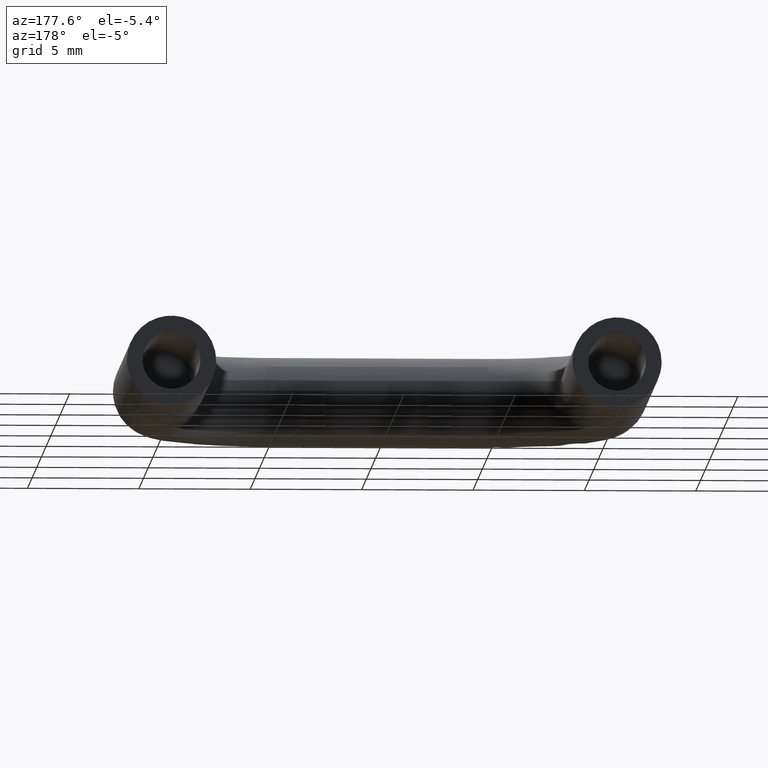
[diagram: clean part render]
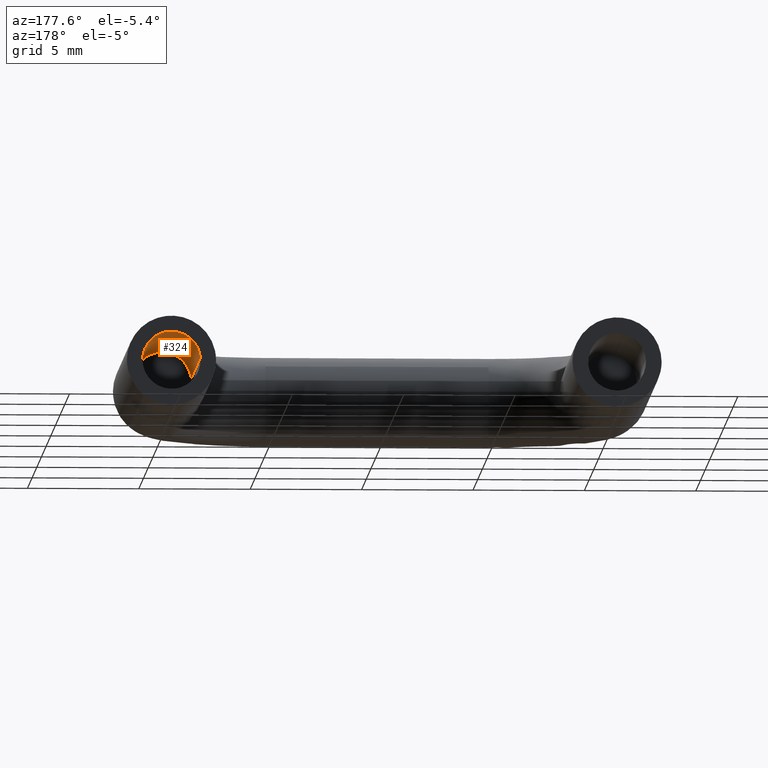
[diagram: same view with one face highlighted and labeled with its STEP entity id]
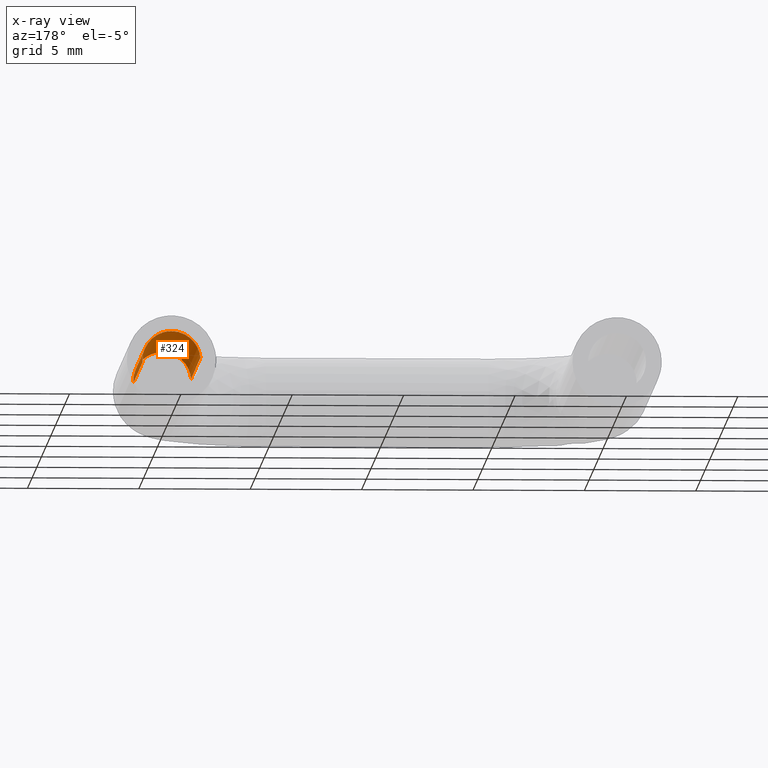
[diagram: x-ray of the same camera — body ghosted, the highlighted face saturated]
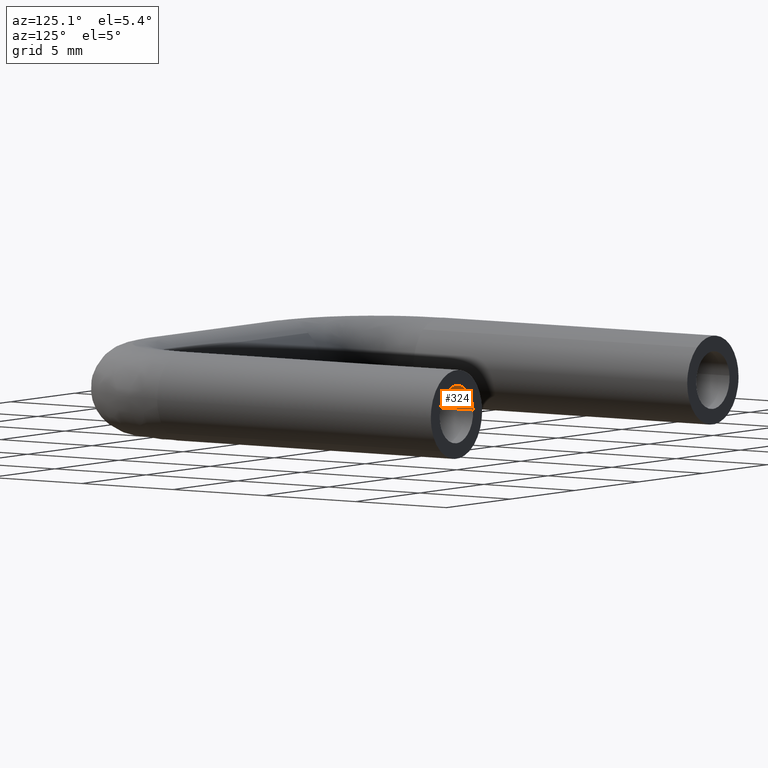
[diagram: same view with one face highlighted and labeled with its STEP entity id]
A machine part, auxiliary view. The second image highlights one B-rep face of the part: STEP entity #324.
The next image is the same camera in x-ray: the body ghosted, the highlighted face saturated — about 4% of this face is hidden behind the body in this view.
A second angle (auxiliary view) of the same face is appended — the face is thin or edge-on in the first view.
In plain terms, the highlighted face is a freeform B-spline surface patch.
Its self-contained STEP definition (entity closure, byte-faithful):
#226=CARTESIAN_POINT('',(18.704007466146930,-10.250000000000000,0.101996824446199));
#227=CARTESIAN_POINT('',(18.806004290593126,-10.250000000000002,1.397989358299265));
#228=CARTESIAN_POINT('',(20.101996824446200,-10.250000000000000,1.295992533853066));
#229=CARTESIAN_POINT('',(21.397989358299263,-10.250000000000002,1.193995709406867));
#230=CARTESIAN_POINT('',(21.295992533853070,-10.250000000000000,-0.101996824446199));
#231=CARTESIAN_POINT('',(18.704007466146930,0.256250000000001,0.101996824446199));
#232=CARTESIAN_POINT('',(18.806004290593126,0.256250000000001,1.397989358299265));
#233=CARTESIAN_POINT('',(20.101996824446200,0.256250000000001,1.295992533853066));
#234=CARTESIAN_POINT('',(21.397989358299263,0.256250000000001,1.193995709406867));
#235=CARTESIAN_POINT('',(21.295992533853070,0.256250000000001,-0.101996824446199));
#243=(BOUNDED_SURFACE()B_SPLINE_SURFACE(2,1,((#226,#231),(#227,#232),(#228,#233),(#229,#234),(#230,#235)),.UNSPECIFIED.,.F.,.F.,.U.)B_SPLINE_SURFACE_WITH_KNOTS((3,2,3),(2,2),(3.141592653589793,4.712388980384690,6.283185307179586),(0.0,10.506250000000000),.UNSPECIFIED.)GEOMETRIC_REPRESENTATION_ITEM()RATIONAL_B_SPLINE_SURFACE(((1.0,1.0),(0.707106781186548,0.707106781186548),(1.0,1.0),(0.707106781186548,0.707106781186548),(1.0,1.0)))REPRESENTATION_ITEM('')SURFACE());
#244=CARTESIAN_POINT('',(20.0,-10.0,1.300000000000000));
#245=VERTEX_POINT('',#244);
#246=CARTESIAN_POINT('',(18.704007400878300,-10.0,0.101995995122767));
#247=VERTEX_POINT('',#246);
#248=CARTESIAN_POINT('',(20.0,-10.0,1.300000000000000));
#249=CARTESIAN_POINT('',(18.798290818109297,-10.0,1.300000000000000));
#250=CARTESIAN_POINT('',(18.704007400878300,-10.0,0.101995995122767));
#258=(BOUNDED_CURVE()B_SPLINE_CURVE(2,(#248,#249,#250),.UNSPECIFIED.,.F.,.U.)B_SPLINE_CURVE_WITH_KNOTS((3,3),(0.0,0.236331520026582),.UNSPECIFIED.)CURVE()GEOMETRIC_REPRESENTATION_ITEM()RATIONAL_B_SPLINE_CURVE((1.0,0.723120401569354,0.969723814030421))REPRESENTATION_ITEM(''));
#259=EDGE_CURVE('',#245,#247,#258,.T.);
#260=ORIENTED_EDGE('',*,*,#259,.T.);
#261=CARTESIAN_POINT('',(18.704007401662519,5.551115E-016,0.101996005087368));
#262=VERTEX_POINT('',#261);
#263=CARTESIAN_POINT('',(18.704007400878300,-10.0,0.101995995122767));
#264=CARTESIAN_POINT('',(18.704007401662519,5.551115E-016,0.101996005087368));
#265=QUASI_UNIFORM_CURVE('',1,(#263,#264),.UNSPECIFIED.,.F.,.U.);
#266=EDGE_CURVE('',#247,#262,#265,.T.);
#267=ORIENTED_EDGE('',*,*,#266,.T.);
#268=CARTESIAN_POINT('',(20.0,0.0,1.300000000000000));
#269=VERTEX_POINT('',#268);
#270=CARTESIAN_POINT('',(20.0,0.0,1.300000000000000));
#271=CARTESIAN_POINT('',(18.798290836645794,0.0,1.300000000000000));
#272=CARTESIAN_POINT('',(18.704007401662512,5.551115E-016,0.101996005087368));
#280=(BOUNDED_CURVE()B_SPLINE_CURVE(2,(#270,#271,#272),.UNSPECIFIED.,.F.,.U.)B_SPLINE_CURVE_WITH_KNOTS((3,3),(0.0,0.236331517390490),.UNSPECIFIED.)CURVE()GEOMETRIC_REPRESENTATION_ITEM()RATIONAL_B_SPLINE_CURVE((1.0,0.723120404657728,0.969723808529088))REPRESENTATION_ITEM(''));
#281=EDGE_CURVE('',#269,#262,#280,.T.);
#282=ORIENTED_EDGE('',*,*,#281,.F.);
#283=CARTESIAN_POINT('',(21.295992598337481,1.124101E-015,-0.101996005087369));
#284=VERTEX_POINT('',#283);
#285=CARTESIAN_POINT('',(21.295992598337481,1.124101E-015,-0.101996005087369));
#286=CARTESIAN_POINT('',(21.300000000000004,0.0,-0.051076315948816));
#287=CARTESIAN_POINT('',(21.300000000000001,0.0,0.0));
#288=CARTESIAN_POINT('',(21.300000000000008,0.0,1.300000000000000));
#289=CARTESIAN_POINT('',(20.0,0.0,1.300000000000000));
#297=(BOUNDED_CURVE()B_SPLINE_CURVE(2,(#285,#286,#287,#288,#289),.UNSPECIFIED.,.F.,.U.)B_SPLINE_CURVE_WITH_KNOTS((3,2,3),(0.736331517390490,0.750000000000000,1.0),.UNSPECIFIED.)CURVE()GEOMETRIC_REPRESENTATION_ITEM()RATIONAL_B_SPLINE_CURVE((0.969723808529088,0.983986376528820,1.0,0.707106781186548,1.0))REPRESENTATION_ITEM(''));
#298=EDGE_CURVE('',#284,#269,#297,.T.);
#299=ORIENTED_EDGE('',*,*,#298,.F.);
#300=CARTESIAN_POINT('',(21.295992599121700,-10.0,-0.101995995122767));
#301=VERTEX_POINT('',#300);
#302=CARTESIAN_POINT('',(21.295992599121700,-10.0,-0.101995995122767));
#303=CARTESIAN_POINT('',(21.295992598337481,1.124101E-015,-0.101996005087369));
#304=QUASI_UNIFORM_CURVE('',1,(#302,#303),.UNSPECIFIED.,.F.,.U.);
#305=EDGE_CURVE('',#301,#284,#304,.T.);
#306=ORIENTED_EDGE('',*,*,#305,.F.);
#307=CARTESIAN_POINT('',(21.295992599121700,-10.0,-0.101995995122767));
#308=CARTESIAN_POINT('',(21.299999999999997,-10.0,-0.051076305937973));
#309=CARTESIAN_POINT('',(21.300000000000001,-10.0,0.0));
#310=CARTESIAN_POINT('',(21.300000000000008,-10.000000000000002,1.300000000000000));
#311=CARTESIAN_POINT('',(20.0,-10.0,1.300000000000000));
#319=(BOUNDED_CURVE()B_SPLINE_CURVE(2,(#307,#308,#309,#310,#311),.UNSPECIFIED.,.F.,.U.)B_SPLINE_CURVE_WITH_KNOTS((3,2,3),(0.736331520026582,0.750000000000000,1.0),.UNSPECIFIED.)CURVE()GEOMETRIC_REPRESENTATION_ITEM()RATIONAL_B_SPLINE_CURVE((0.969723814030421,0.983986379617193,1.0,0.707106781186548,1.0))REPRESENTATION_ITEM(''));
#320=EDGE_CURVE('',#301,#245,#319,.T.);
#321=ORIENTED_EDGE('',*,*,#320,.T.);
#322=EDGE_LOOP('',(#260,#267,#282,#299,#306,#321));
#323=FACE_OUTER_BOUND('',#322,.T.);
#324=ADVANCED_FACE('',(#323),#243,.F.);